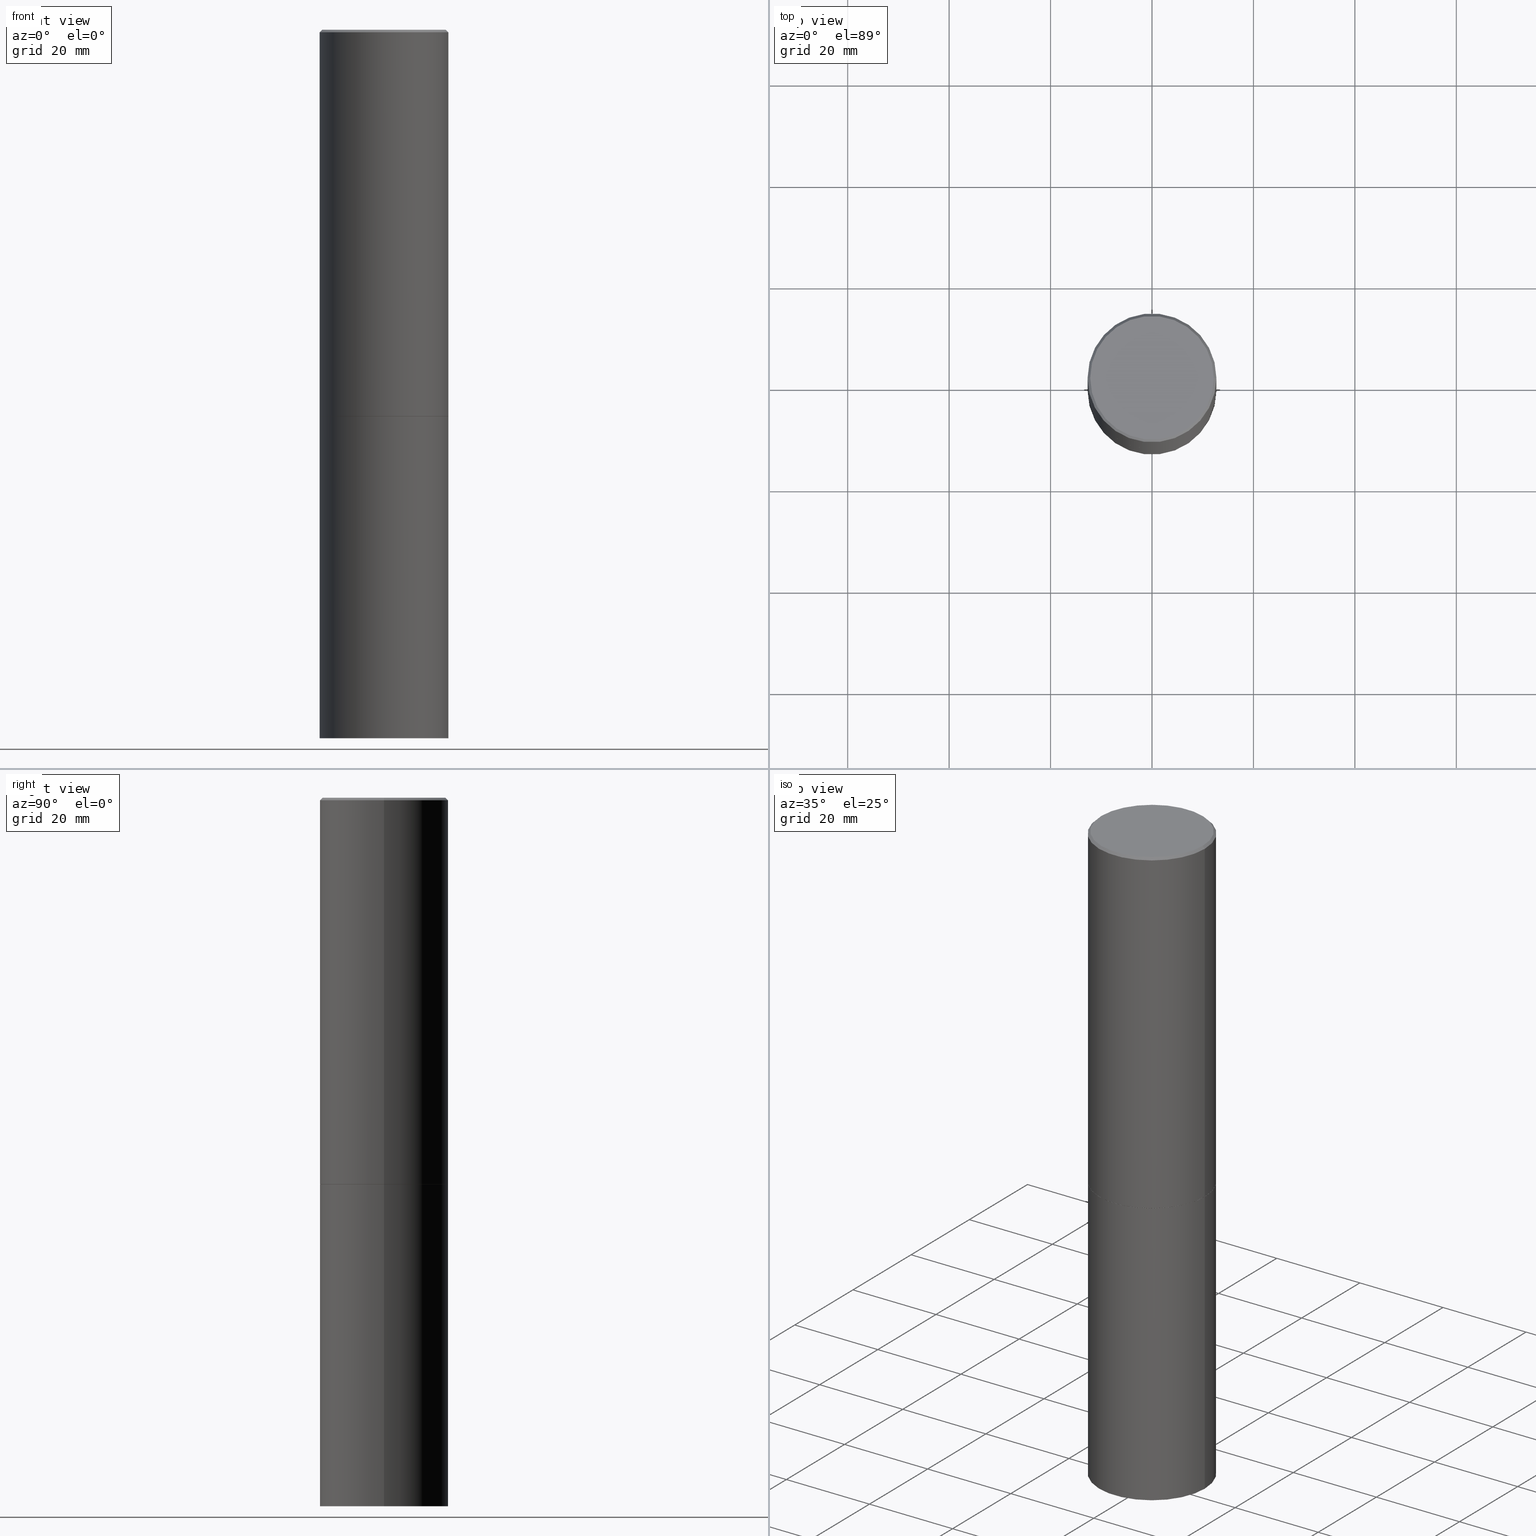
[diagram: canonical four-view strip — front | top / right | iso, engineering-drawing reading convention]
A machine part, canonical four-view strip (front | top / right | iso — engineering-drawing reading convention). The complete STEP part file that produces these views, byte-faithful:
ISO-10303-21;
HEADER;
FILE_DESCRIPTION (( 'STEP AP203' ),
    '1' );
FILE_NAME ('77292.STEP',
    '2024-02-29T18:11:38',
    ( '' ),
    ( '' ),
    'SwSTEP 2.0',
    'SolidWorks 2023',
    '' );
FILE_SCHEMA (( 'CONFIG_CONTROL_DESIGN' ));
ENDSEC;

DATA;
#1 = DIRECTION ( 'NONE',  ( 1.000000000000000000, -6.982962677686267499E-15, 4.876036955247132767E-29 ) ) ;
#2 = CIRCLE ( 'NONE', #220, 0.5000000000000000000 ) ;
#3 = APPROVAL_STATUS ( 'not_yet_approved' ) ;
#4 = APPROVAL_DATE_TIME ( #258, #55 ) ;
#5 = DATE_AND_TIME ( #80, #133 ) ;
#6 = CARTESIAN_POINT ( 'NONE',  ( 0.000000000000000000, 0.000000000000000000, 0.000000000000000000 ) ) ;
#7 = APPROVAL_PERSON_ORGANIZATION ( #83, #13, #366 ) ;
#8 = CARTESIAN_POINT ( 'NONE',  ( 7.336406418555408669E-29, -1.047444401652943478E-14, -2.999999999999999556 ) ) ;
#9 = DIRECTION ( 'NONE',  ( 1.000000000000000000, -6.982962677686267499E-15, 4.876176775795936353E-29 ) ) ;
#10 = CONICAL_SURFACE ( 'NONE', #49, 0.4989999999999999991, 0.7853981633978239785 ) ;
#11 = CARTESIAN_POINT ( 'NONE',  ( -0.4799999999999996492, 3.386736898677836830E-15, 1.280553747027767124E-17 ) ) ;
#12 = EDGE_LOOP ( 'NONE', ( #42, #360, #15, #45 ) ) ;
#13 = APPROVAL ( #3, 'UNSPECIFIED' ) ;
#14 = AXIS2_PLACEMENT_3D ( 'NONE', #197, #318, #262 ) ;
#15 = ORIENTED_EDGE ( 'NONE', *, *, #229, .F. ) ;
#16 = LINE ( 'NONE', #130, #125 ) ;
#17 = VERTEX_POINT ( 'NONE', #271 ) ;
#18 = CLOSED_SHELL ( 'NONE', ( #129, #194, #235, #364 ) ) ;
#19 = CC_DESIGN_APPROVAL ( #151, ( #300 ) ) ;
#20 = CARTESIAN_POINT ( 'NONE',  ( -0.4999999999999997224, 3.421651712066268085E-15, -0.02000000000000012879 ) ) ;
#21 = EDGE_CURVE ( 'NONE', #273, #358, #183, .T. ) ;
#22 = CARTESIAN_POINT ( 'NONE',  ( 7.336406418555408669E-29, -1.047444401652943478E-14, -2.999999999999999556 ) ) ;
#23 = ORIENTED_EDGE ( 'NONE', *, *, #61, .T. ) ;
#24 = EDGE_CURVE ( 'NONE', #159, #62, #134, .T. ) ;
#25 = DIRECTION ( 'NONE',  ( 1.000000000000000000, -6.982962677686262766E-15, 0.000000000000000000 ) ) ;
#26 = PERSON_AND_ORGANIZATION_ROLE ( 'design_supplier' ) ;
#27 = APPLICATION_PROTOCOL_DEFINITION ( 'international standard', 'config_control_design', 1994, #40 ) ;
#28 = PRODUCT_DEFINITION_SHAPE ( 'NONE', 'NONE',  #300 ) ;
#29 = FACE_OUTER_BOUND ( 'NONE', #110, .T. ) ;
#30 = CARTESIAN_POINT ( 'NONE',  ( -0.5000000000000000000, -1.717677402183226998E-15, -2.999000000000000554 ) ) ;
#31 = DIRECTION ( 'NONE',  ( 1.000000000000000000, 0.000000000000000000, 0.000000000000000000 ) ) ;
#32 = DIRECTION ( 'NONE',  ( -1.000000000000000000, 6.982962677686265922E-15, -4.876176775795935793E-29 ) ) ;
#33 = PERSON_AND_ORGANIZATION ( #267, #87 ) ;
#34 = CALENDAR_DATE ( 2024, 29, 2 ) ;
#35 = PRODUCT_RELATED_PRODUCT_CATEGORY ( 'detail', '', ( #138 ) ) ;
#36 = VERTEX_POINT ( 'NONE', #47 ) ;
#37 = EDGE_CURVE ( 'NONE', #245, #299, #16, .T. ) ;
#38 = CARTESIAN_POINT ( 'NONE',  ( 1.345007843401824904E-28, -1.920314736363729972E-14, -5.500000000000000000 ) ) ;
#39 = CARTESIAN_POINT ( 'NONE',  ( -0.4989999999999999991, -6.928835765086534855E-15, -2.999999999999999556 ) ) ;
#40 = APPLICATION_CONTEXT ( 'configuration controlled 3d designs of mechanical parts and assemblies' ) ;
#41 = ORIENTED_EDGE ( 'NONE', *, *, #322, .T. ) ;
#42 = ORIENTED_EDGE ( 'NONE', *, *, #259, .T. ) ;
#43 = DIRECTION ( 'NONE',  ( -2.445468806185136877E-29, 3.491481338843145188E-15, 1.000000000000000000 ) ) ;
#44 = CONICAL_SURFACE ( 'NONE', #71, 0.4999999999999997224, 0.7853981633974463916 ) ;
#45 = ORIENTED_EDGE ( 'NONE', *, *, #322, .F. ) ;
#46 = DIRECTION ( 'NONE',  ( 2.438088387897960049E-29, -3.491481338843145188E-15, -1.000000000000000000 ) ) ;
#47 = CARTESIAN_POINT ( 'NONE',  ( 0.5000000000000000000, -1.396592535537256813E-14, -2.999999999999999556 ) ) ;
#48 = CARTESIAN_POINT ( 'NONE',  ( 0.4989999999999999991, -1.395894239269488369E-14, -2.999999999999999556 ) ) ;
#49 = AXIS2_PLACEMENT_3D ( 'NONE', #315, #279, #248 ) ;
#50 = FACE_OUTER_BOUND ( 'NONE', #307, .T. ) ;
#51 = VERTEX_POINT ( 'NONE', #238 ) ;
#52 = DIRECTION ( 'NONE',  ( 1.000000000000000000, -6.982962677686266711E-15, 4.876176775795935793E-29 ) ) ;
#53 = EDGE_CURVE ( 'NONE', #338, #361, #335, .T. ) ;
#54 = DATE_TIME_ROLE ( 'classification_date' ) ;
#55 = APPROVAL ( #314, 'UNSPECIFIED' ) ;
#56 = DIRECTION ( 'NONE',  ( 2.438088387897960049E-29, -3.491481338843145188E-15, -1.000000000000000000 ) ) ;
#57 = AXIS2_PLACEMENT_3D ( 'NONE', #363, #107, #76 ) ;
#58 = CARTESIAN_POINT ( 'NONE',  ( 0.000000000000000000, 0.000000000000000000, 0.000000000000000000 ) ) ;
#59 = CYLINDRICAL_SURFACE ( 'NONE', #14, 0.5000000000000000000 ) ;
#60 = APPROVAL_ROLE ( '' ) ;
#61 = EDGE_CURVE ( 'NONE', #159, #51, #356, .T. ) ;
#62 = VERTEX_POINT ( 'NONE', #142 ) ;
#63 = PLANE ( 'NONE',  #126 ) ;
#64 = AXIS2_PLACEMENT_3D ( 'NONE', #6, #292, #118 ) ;
#65 = EDGE_CURVE ( 'NONE', #338, #17, #103, .T. ) ;
#66 = CIRCLE ( 'NONE', #290, 0.4799999999999996492 ) ;
#67 = PRODUCT_DEFINITION_FORMATION_WITH_SPECIFIED_SOURCE ( 'ANY', '', #138, .NOT_KNOWN. ) ;
#68 = VERTEX_POINT ( 'NONE', #30 ) ;
#69 = FACE_OUTER_BOUND ( 'NONE', #70, .T. ) ;
#70 = EDGE_LOOP ( 'NONE', ( #278, #304, #309, #269 ) ) ;
#71 = AXIS2_PLACEMENT_3D ( 'NONE', #207, #120, #326 ) ;
#72 =( LENGTH_UNIT ( ) NAMED_UNIT ( * ) SI_UNIT ( $, .METRE. ) );
#73 = CC_DESIGN_PERSON_AND_ORGANIZATION_ASSIGNMENT ( #198, #343, ( #357 ) ) ;
#74 = ORIENTED_EDGE ( 'NONE', *, *, #65, .T. ) ;
#75 = DIRECTION ( 'NONE',  ( 1.000000000000000000, -6.982962677686269077E-15, 0.000000000000000000 ) ) ;
#76 = DIRECTION ( 'NONE',  ( 1.000000000000000000, -6.982962677686266711E-15, 0.000000000000000000 ) ) ;
#77 = ORIENTED_EDGE ( 'NONE', *, *, #53, .T. ) ;
#78 = AXIS2_PLACEMENT_3D ( 'NONE', #208, #119, #173 ) ;
#79 = CARTESIAN_POINT ( 'NONE',  ( 7.336406418555408669E-29, -1.047444401652943478E-14, -2.999999999999999556 ) ) ;
#80 = CALENDAR_DATE ( 2024, 29, 2 ) ;
#81 = ORIENTED_EDGE ( 'NONE', *, *, #259, .F. ) ;
#82 = APPROVAL_DATE_TIME ( #202, #13 ) ;
#83 = PERSON_AND_ORGANIZATION ( #267, #87 ) ;
#84 = MANIFOLD_SOLID_BREP ( 'Body-Move/Copy2[1]', #18 ) ;
#85 = AXIS2_PLACEMENT_3D ( 'NONE', #113, #257, #218 ) ;
#86 = CARTESIAN_POINT ( 'NONE',  ( 3.491481338843267462E-15, 0.4999999999999807931, -5.500000000000001776 ) ) ;
#87 = ORGANIZATION ( 'UNSPECIFIED', 'UNSPECIFIED', '' ) ;
#88 = DIRECTION ( 'NONE',  ( 0.000000000000000000, 0.000000000000000000, 1.000000000000000000 ) ) ;
#89 = EDGE_CURVE ( 'NONE', #361, #68, #148, .T. ) ;
#90 = SECURITY_CLASSIFICATION_LEVEL ( 'unclassified' ) ;
#91 = CYLINDRICAL_SURFACE ( 'NONE', #178, 0.4999999999999998335 ) ;
#92 = FACE_OUTER_BOUND ( 'NONE', #181, .T. ) ;
#93 = DIRECTION ( 'NONE',  ( -1.000000000000000000, 6.982962677686266711E-15, 0.000000000000000000 ) ) ;
#94 = AXIS2_PLACEMENT_3D ( 'NONE', #86, #56, #32 ) ;
#95 = CC_DESIGN_APPROVAL ( #13, ( #357 ) ) ;
#96 = PLANE ( 'NONE',  #78 ) ;
#97 = APPLICATION_CONTEXT ( 'configuration controlled 3d designs of mechanical parts and assemblies' ) ;
#98 = ORIENTED_EDGE ( 'NONE', *, *, #293, .F. ) ;
#99 = CC_DESIGN_PERSON_AND_ORGANIZATION_ASSIGNMENT ( #250, #341, ( #67 ) ) ;
#100 = EDGE_LOOP ( 'NONE', ( #74, #158, #295, #150 ) ) ;
#101 = EDGE_CURVE ( 'NONE', #245, #273, #66, .T. ) ;
#102 = DIRECTION ( 'NONE',  ( 0.7071067811865461294, -7.319954787623251312E-15, -0.7071067811865489050 ) ) ;
#103 = CIRCLE ( 'NONE', #199, 0.4989999999999999991 ) ;
#104 = VECTOR ( 'NONE', #301, 39.37007874015748143 ) ;
#105 = AXIS2_PLACEMENT_3D ( 'NONE', #22, #227, #234 ) ;
#106 = ORIENTED_EDGE ( 'NONE', *, *, #127, .T. ) ;
#107 = DIRECTION ( 'NONE',  ( -2.445468806185136597E-29, 3.491481338843145583E-15, 1.000000000000000000 ) ) ;
#108 = ORIENTED_EDGE ( 'NONE', *, *, #21, .F. ) ;
#109 = DIRECTION ( 'NONE',  ( -2.445468806185136597E-29, 3.491481338843145583E-15, 1.000000000000000000 ) ) ;
#110 = EDGE_LOOP ( 'NONE', ( #98, #136, #77, #195 ) ) ;
#111 = APPROVAL_STATUS ( 'not_yet_approved' ) ;
#112 = AXIS2_PLACEMENT_3D ( 'NONE', #243, #109, #52 ) ;
#113 = CARTESIAN_POINT ( 'NONE',  ( 7.333960949749226429E-29, -1.047095253519059492E-14, -2.999000000000000554 ) ) ;
#114 = DATE_AND_TIME ( #34, #164 ) ;
#115 = CARTESIAN_POINT ( 'NONE',  ( 4.890937612370304688E-31, -6.982962677686335982E-17, -0.02000000000000012879 ) ) ;
#116 = LOCAL_TIME ( 13, 11, 38.00000000000000000, #225 ) ;
#117 = FACE_OUTER_BOUND ( 'NONE', #337, .T. ) ;
#118 = DIRECTION ( 'NONE',  ( 1.000000000000000000, -6.982962677686267499E-15, 4.876176775795936353E-29 ) ) ;
#119 = DIRECTION ( 'NONE',  ( 2.438088387897960049E-29, -3.491481338843145188E-15, -1.000000000000000000 ) ) ;
#120 = DIRECTION ( 'NONE',  ( 2.445468806185136597E-29, -3.491481338843145583E-15, -1.000000000000000000 ) ) ;
#121 = CLOSED_SHELL ( 'NONE', ( #350, #270, #157, #244, #330, #176, #247, #333 ) ) ;
#122 = AXIS2_PLACEMENT_3D ( 'NONE', #160, #336, #163 ) ;
#123 = LINE ( 'NONE', #284, #251 ) ;
#124 = EDGE_LOOP ( 'NONE', ( #215, #213 ) ) ;
#125 = VECTOR ( 'NONE', #102, 39.37007874015748143 ) ;
#126 = AXIS2_PLACEMENT_3D ( 'NONE', #8, #297, #230 ) ;
#127 = EDGE_CURVE ( 'NONE', #68, #358, #320, .T. ) ;
#128 = ORIENTED_EDGE ( 'NONE', *, *, #233, .F. ) ;
#129 = ADVANCED_FACE ( 'NONE', ( #342 ), #59, .T. ) ;
#130 = CARTESIAN_POINT ( 'NONE',  ( 0.4999999999999997224, -3.500078625662627502E-15, -0.02000000000000012879 ) ) ;
#131 = ORIENTED_EDGE ( 'NONE', *, *, #272, .F. ) ;
#132 = FACE_OUTER_BOUND ( 'NONE', #100, .T. ) ;
#133 = LOCAL_TIME ( 13, 11, 38.00000000000000000, #255 ) ;
#134 = LINE ( 'NONE', #242, #362 ) ;
#135 = CYLINDRICAL_SURFACE ( 'NONE', #112, 0.5000000000000000000 ) ;
#136 = ORIENTED_EDGE ( 'NONE', *, *, #233, .T. ) ;
#137 = FACE_OUTER_BOUND ( 'NONE', #204, .T. ) ;
#138 = PRODUCT ( '77292', '77292', '', ( #280 ) ) ;
#139 = COORDINATED_UNIVERSAL_TIME_OFFSET ( 5, 0, .BEHIND. ) ;
#140 = DIRECTION ( 'NONE',  ( 1.000000000000000000, -6.982962677686266711E-15, 0.000000000000000000 ) ) ;
#141 = VECTOR ( 'NONE', #323, 39.37007874015748854 ) ;
#142 = CARTESIAN_POINT ( 'NONE',  ( -0.5000000000000000000, -1.128608201128286632E-14, -2.999999999999999556 ) ) ;
#143 = COORDINATED_UNIVERSAL_TIME_OFFSET ( 5, 0, .BEHIND. ) ;
#144 = DIRECTION ( 'NONE',  ( -2.445468806185136597E-29, 3.491481338843145583E-15, 1.000000000000000000 ) ) ;
#145 = CC_DESIGN_DATE_AND_TIME_ASSIGNMENT ( #114, #54, ( #357 ) ) ;
#146 = PERSON_AND_ORGANIZATION ( #267, #87 ) ;
#147 = APPROVAL_ROLE ( '' ) ;
#148 = CIRCLE ( 'NONE', #85, 0.5000000000000000000 ) ;
#149 = CONICAL_SURFACE ( 'NONE', #282, 0.4999999999999997224, 0.7853981633974463916 ) ;
#150 = ORIENTED_EDGE ( 'NONE', *, *, #53, .F. ) ;
#151 = APPROVAL ( #111, 'UNSPECIFIED' ) ;
#152 = CARTESIAN_POINT ( 'NONE',  ( 0.000000000000000000, 0.000000000000000000, 0.000000000000000000 ) ) ;
#153 = UNCERTAINTY_MEASURE_WITH_UNIT (LENGTH_MEASURE( 1.000000000000000082E-05 ), #302, 'distance_accuracy_value', 'NONE');
#154 = FACE_OUTER_BOUND ( 'NONE', #354, .T. ) ;
#155 =( GEOMETRIC_REPRESENTATION_CONTEXT ( 3 ) GLOBAL_UNCERTAINTY_ASSIGNED_CONTEXT ( ( #153 ) ) GLOBAL_UNIT_ASSIGNED_CONTEXT ( ( #302, #311, #167 ) ) REPRESENTATION_CONTEXT ( 'NONE', 'WORKASPACE' ) );
#156 = AXIS2_PLACEMENT_3D ( 'NONE', #241, #216, #75 ) ;
#157 = ADVANCED_FACE ( 'NONE', ( #92 ), #44, .T. ) ;
#158 = ORIENTED_EDGE ( 'NONE', *, *, #293, .T. ) ;
#159 = VERTEX_POINT ( 'NONE', #232 ) ;
#160 = CARTESIAN_POINT ( 'NONE',  ( -3.131554243005659264E-46, 4.471029511141341874E-32, 1.280553747030123384E-17 ) ) ;
#161 = CARTESIAN_POINT ( 'NONE',  ( 0.4989999999999999991, -1.395894239269488369E-14, -2.999999999999999556 ) ) ;
#162 = ORIENTED_EDGE ( 'NONE', *, *, #37, .T. ) ;
#163 = DIRECTION ( 'NONE',  ( 1.000000000000000000, -6.982962677686267499E-15, 4.876036955247132767E-29 ) ) ;
#164 = LOCAL_TIME ( 13, 11, 38.00000000000000000, #174 ) ;
#165 = DIRECTION ( 'NONE',  ( -2.445468806185136597E-29, 3.491481338843145583E-15, 1.000000000000000000 ) ) ;
#166 = EDGE_LOOP ( 'NONE', ( #237, #128 ) ) ;
#167 =( NAMED_UNIT ( * ) SI_UNIT ( $, .STERADIAN. ) SOLID_ANGLE_UNIT ( ) );
#168 = EDGE_CURVE ( 'NONE', #68, #361, #2, .T. ) ;
#169 = PERSON_AND_ORGANIZATION_ROLE ( 'design_owner' ) ;
#170 = DIRECTION ( 'NONE',  ( -2.445468806185136597E-29, 3.491481338843145583E-15, 1.000000000000000000 ) ) ;
#171 = EDGE_CURVE ( 'NONE', #361, #299, #123, .T. ) ;
#172 = PLANE ( 'NONE',  #94 ) ;
#173 = DIRECTION ( 'NONE',  ( -1.000000000000000000, 6.982962677686265922E-15, -4.876176775795935793E-29 ) ) ;
#174 = COORDINATED_UNIVERSAL_TIME_OFFSET ( 5, 0, .BEHIND. ) ;
#175 = ORIENTED_EDGE ( 'NONE', *, *, #344, .F. ) ;
#176 = ADVANCED_FACE ( 'NONE', ( #29 ), #10, .T. ) ;
#177 = LINE ( 'NONE', #287, #352 ) ;
#178 = AXIS2_PLACEMENT_3D ( 'NONE', #152, #205, #9 ) ;
#179 = DIRECTION ( 'NONE',  ( 2.445468806185136597E-29, -3.491481338843145583E-15, -1.000000000000000000 ) ) ;
#180 = CARTESIAN_POINT ( 'NONE',  ( 7.333960949749226429E-29, -1.047095253519059492E-14, -2.999000000000000554 ) ) ;
#181 = EDGE_LOOP ( 'NONE', ( #317, #162, #189, #108 ) ) ;
#182 = CC_DESIGN_SECURITY_CLASSIFICATION ( #357, ( #67 ) ) ;
#183 = LINE ( 'NONE', #20, #104 ) ;
#184 = CC_DESIGN_PERSON_AND_ORGANIZATION_ASSIGNMENT ( #316, #348, ( #300 ) ) ;
#185 = CYLINDRICAL_SURFACE ( 'NONE', #64, 0.4999999999999998335 ) ;
#186 = ORIENTED_EDGE ( 'NONE', *, *, #211, .T. ) ;
#187 = AXIS2_PLACEMENT_3D ( 'NONE', #38, #321, #327 ) ;
#188 = ORIENTED_EDGE ( 'NONE', *, *, #61, .F. ) ;
#189 = ORIENTED_EDGE ( 'NONE', *, *, #240, .T. ) ;
#190 = CARTESIAN_POINT ( 'NONE',  ( -0.4999999999999997224, 3.421651712066268085E-15, -0.02000000000000012879 ) ) ;
#191 = CARTESIAN_POINT ( 'NONE',  ( 7.336406418555408669E-29, -1.047444401652943478E-14, -2.999999999999999556 ) ) ;
#192 = ORIENTED_EDGE ( 'NONE', *, *, #37, .F. ) ;
#193 = LOCAL_TIME ( 13, 11, 38.00000000000000000, #139 ) ;
#194 = ADVANCED_FACE ( 'NONE', ( #50 ), #172, .T. ) ;
#195 = ORIENTED_EDGE ( 'NONE', *, *, #168, .F. ) ;
#196 = SHAPE_DEFINITION_REPRESENTATION ( #28, #254 ) ;
#197 = CARTESIAN_POINT ( 'NONE',  ( 0.000000000000000000, 0.000000000000000000, 0.000000000000000000 ) ) ;
#198 = PERSON_AND_ORGANIZATION ( #267, #87 ) ;
#199 = AXIS2_PLACEMENT_3D ( 'NONE', #79, #200, #283 ) ;
#200 = DIRECTION ( 'NONE',  ( -2.445468806185136597E-29, 3.491481338843145583E-15, 1.000000000000000000 ) ) ;
#201 = DIRECTION ( 'NONE',  ( 0.7071067811868130271, -2.468850131085038979E-15, 0.7071067811862817853 ) ) ;
#202 = DATE_AND_TIME ( #319, #193 ) ;
#203 = LINE ( 'NONE', #39, #141 ) ;
#204 = EDGE_LOOP ( 'NONE', ( #332, #365 ) ) ;
#205 = DIRECTION ( 'NONE',  ( -2.445468806185136597E-29, 3.491481338843145583E-15, 1.000000000000000000 ) ) ;
#206 = CIRCLE ( 'NONE', #187, 0.5000000000000000000 ) ;
#207 = CARTESIAN_POINT ( 'NONE',  ( 4.890937612370304688E-31, -6.982962677686335982E-17, -0.02000000000000012879 ) ) ;
#208 = CARTESIAN_POINT ( 'NONE',  ( 3.491481338843206325E-15, 0.4999999999999895639, -3.000000000000001332 ) ) ;
#209 = CC_DESIGN_PERSON_AND_ORGANIZATION_ASSIGNMENT ( #33, #169, ( #138 ) ) ;
#210 = CARTESIAN_POINT ( 'NONE',  ( 0.4999999999999997224, -3.500078625662627502E-15, -0.02000000000000012879 ) ) ;
#211 = EDGE_CURVE ( 'NONE', #358, #299, #310, .T. ) ;
#212 = ORIENTED_EDGE ( 'NONE', *, *, #89, .T. ) ;
#213 = ORIENTED_EDGE ( 'NONE', *, *, #272, .T. ) ;
#214 = CIRCLE ( 'NONE', #122, 0.4799999999999996492 ) ;
#215 = ORIENTED_EDGE ( 'NONE', *, *, #229, .T. ) ;
#216 = DIRECTION ( 'NONE',  ( -2.445468806185136597E-29, 3.491481338843145583E-15, 1.000000000000000000 ) ) ;
#217 = ORIENTED_EDGE ( 'NONE', *, *, #240, .F. ) ;
#218 = DIRECTION ( 'NONE',  ( 1.000000000000000000, -6.982962677686266711E-15, 0.000000000000000000 ) ) ;
#219 = DATE_AND_TIME ( #223, #224 ) ;
#220 = AXIS2_PLACEMENT_3D ( 'NONE', #180, #170, #140 ) ;
#221 = DATE_TIME_ROLE ( 'creation_date' ) ;
#222 = DIRECTION ( 'NONE',  ( -2.445468806185136877E-29, 3.491481338843145188E-15, 1.000000000000000000 ) ) ;
#223 = CALENDAR_DATE ( 2024, 29, 2 ) ;
#224 = LOCAL_TIME ( 13, 11, 38.00000000000000000, #143 ) ;
#225 = COORDINATED_UNIVERSAL_TIME_OFFSET ( 5, 0, .BEHIND. ) ;
#226 = CC_DESIGN_DATE_AND_TIME_ASSIGNMENT ( #219, #221, ( #300 ) ) ;
#227 = DIRECTION ( 'NONE',  ( -2.445468806185136597E-29, 3.491481338843145583E-15, 1.000000000000000000 ) ) ;
#228 = DIRECTION ( 'NONE',  ( -2.445468806185136877E-29, 3.491481338843145188E-15, 1.000000000000000000 ) ) ;
#229 = EDGE_CURVE ( 'NONE', #36, #62, #266, .T. ) ;
#230 = DIRECTION ( 'NONE',  ( 1.000000000000000000, -6.982962677686265922E-15, 4.876176775795935793E-29 ) ) ;
#231 = VECTOR ( 'NONE', #222, 39.37007874015748143 ) ;
#232 = CARTESIAN_POINT ( 'NONE',  ( -0.5000000000000000000, -1.128608201128286632E-14, -5.500000000000000000 ) ) ;
#233 = EDGE_CURVE ( 'NONE', #17, #338, #236, .T. ) ;
#234 = DIRECTION ( 'NONE',  ( 1.000000000000000000, -6.982962677686269077E-15, 0.000000000000000000 ) ) ;
#235 = ADVANCED_FACE ( 'NONE', ( #294 ), #96, .F. ) ;
#236 = CIRCLE ( 'NONE', #105, 0.4989999999999999991 ) ;
#237 = ORIENTED_EDGE ( 'NONE', *, *, #65, .F. ) ;
#238 = CARTESIAN_POINT ( 'NONE',  ( 0.5000000000000000000, -2.269462870248043307E-14, -5.500000000000000000 ) ) ;
#239 = AXIS2_PLACEMENT_3D ( 'NONE', #305, #46, #312 ) ;
#240 = EDGE_CURVE ( 'NONE', #299, #358, #345, .T. ) ;
#241 = CARTESIAN_POINT ( 'NONE',  ( 7.336406418555408669E-29, -1.047444401652943478E-14, -2.999999999999999556 ) ) ;
#242 = CARTESIAN_POINT ( 'NONE',  ( -0.5000000000000000000, 3.552713678800500929E-15, -2.459467545127452891E-29 ) ) ;
#243 = CARTESIAN_POINT ( 'NONE',  ( 0.000000000000000000, 0.000000000000000000, 0.000000000000000000 ) ) ;
#244 = ADVANCED_FACE ( 'NONE', ( #349 ), #149, .T. ) ;
#245 = VERTEX_POINT ( 'NONE', #331 ) ;
#246 = CARTESIAN_POINT ( 'NONE',  ( 0.5000000000000000000, -1.396243387403372828E-14, -2.999000000000000554 ) ) ;
#247 = ADVANCED_FACE ( 'NONE', ( #346 ), #63, .F. ) ;
#248 = DIRECTION ( 'NONE',  ( 1.000000000000000000, -6.982962677686269077E-15, 0.000000000000000000 ) ) ;
#249 = DIRECTION ( 'NONE',  ( -2.445468806185136597E-29, 3.491481338843145583E-15, 1.000000000000000000 ) ) ;
#250 = PERSON_AND_ORGANIZATION ( #267, #87 ) ;
#251 = VECTOR ( 'NONE', #228, 39.37007874015748143 ) ;
#252 = CARTESIAN_POINT ( 'NONE',  ( -0.4999999999999998335, 3.552713678800499746E-15, -2.459467545127452330E-29 ) ) ;
#253 = CALENDAR_DATE ( 2024, 29, 2 ) ;
#254 = ADVANCED_BREP_SHAPE_REPRESENTATION ( '77292', ( #84, #325, #340 ), #155 ) ;
#255 = COORDINATED_UNIVERSAL_TIME_OFFSET ( 5, 0, .BEHIND. ) ;
#256 = CARTESIAN_POINT ( 'NONE',  ( 7.336406418555408669E-29, -1.047444401652943478E-14, -2.999999999999999556 ) ) ;
#257 = DIRECTION ( 'NONE',  ( -2.445468806185136597E-29, 3.491481338843145583E-15, 1.000000000000000000 ) ) ;
#258 = DATE_AND_TIME ( #253, #116 ) ;
#259 = EDGE_CURVE ( 'NONE', #51, #159, #206, .T. ) ;
#260 = AXIS2_PLACEMENT_3D ( 'NONE', #191, #165, #277 ) ;
#261 = CARTESIAN_POINT ( 'NONE',  ( 4.890937612370304688E-31, -6.982962677686335982E-17, -0.02000000000000012879 ) ) ;
#262 = DIRECTION ( 'NONE',  ( 1.000000000000000000, -6.982962677686266711E-15, 4.876176775795935793E-29 ) ) ;
#263 = DIRECTION ( 'NONE',  ( -2.445468806185136597E-29, 3.491481338843145583E-15, 1.000000000000000000 ) ) ;
#264 = VECTOR ( 'NONE', #201, 39.37007874015748854 ) ;
#265 = DIRECTION ( 'NONE',  ( 1.000000000000000000, -6.982962677686266711E-15, 0.000000000000000000 ) ) ;
#266 = CIRCLE ( 'NONE', #260, 0.5000000000000000000 ) ;
#267 = PERSON ( 'UNSPECIFIED', 'UNSPECIFIED', 'UNSPECIFIED', ('UNSPECIFIED'), ('UNSPECIFIED'), ('UNSPECIFIED') ) ;
#268 = CONICAL_SURFACE ( 'NONE', #156, 0.4989999999999999991, 0.7853981633978239785 ) ;
#269 = ORIENTED_EDGE ( 'NONE', *, *, #211, .F. ) ;
#270 = ADVANCED_FACE ( 'NONE', ( #154 ), #91, .T. ) ;
#271 = CARTESIAN_POINT ( 'NONE',  ( -0.4989999999999999991, -6.923537310738314819E-15, -2.999999999999999556 ) ) ;
#272 = EDGE_CURVE ( 'NONE', #62, #36, #291, .T. ) ;
#273 = VERTEX_POINT ( 'NONE', #11 ) ;
#274 = ORIENTED_EDGE ( 'NONE', *, *, #171, .F. ) ;
#275 = APPROVAL_PERSON_ORGANIZATION ( #281, #55, #147 ) ;
#276 = DESIGN_CONTEXT ( 'detailed design', #97, 'design' ) ;
#277 = DIRECTION ( 'NONE',  ( 1.000000000000000000, -6.982962677686266711E-15, 0.000000000000000000 ) ) ;
#278 = ORIENTED_EDGE ( 'NONE', *, *, #127, .F. ) ;
#279 = DIRECTION ( 'NONE',  ( -2.445468806185136597E-29, 3.491481338843145583E-15, 1.000000000000000000 ) ) ;
#280 = MECHANICAL_CONTEXT ( 'NONE', #40, 'mechanical' ) ;
#281 = PERSON_AND_ORGANIZATION ( #267, #87 ) ;
#282 = AXIS2_PLACEMENT_3D ( 'NONE', #115, #179, #93 ) ;
#283 = DIRECTION ( 'NONE',  ( 1.000000000000000000, -6.982962677686269077E-15, 0.000000000000000000 ) ) ;
#284 = CARTESIAN_POINT ( 'NONE',  ( 0.4999999999999998335, -3.491481338843132566E-15, 2.438088387897967336E-29 ) ) ;
#285 = APPLICATION_PROTOCOL_DEFINITION ( 'international standard', 'config_control_design', 1994, #97 ) ;
#286 = APPROVAL_DATE_TIME ( #5, #151 ) ;
#287 = CARTESIAN_POINT ( 'NONE',  ( 0.5000000000000000000, -3.491481338843133355E-15, 2.438088387897967896E-29 ) ) ;
#288 = PERSON_AND_ORGANIZATION ( #267, #87 ) ;
#289 = EDGE_LOOP ( 'NONE', ( #192, #175, #306, #186 ) ) ;
#290 = AXIS2_PLACEMENT_3D ( 'NONE', #313, #249, #1 ) ;
#291 = CIRCLE ( 'NONE', #303, 0.5000000000000000000 ) ;
#292 = DIRECTION ( 'NONE',  ( -2.445468806185136597E-29, 3.491481338843145583E-15, 1.000000000000000000 ) ) ;
#293 = EDGE_CURVE ( 'NONE', #17, #68, #203, .T. ) ;
#294 = FACE_OUTER_BOUND ( 'NONE', #124, .T. ) ;
#295 = ORIENTED_EDGE ( 'NONE', *, *, #89, .F. ) ;
#296 = DIMENSIONAL_EXPONENTS ( 1.000000000000000000, 0.000000000000000000, 0.000000000000000000, 0.000000000000000000, 0.000000000000000000, 0.000000000000000000, 0.000000000000000000 ) ;
#297 = DIRECTION ( 'NONE',  ( -2.438088387897960049E-29, 3.491481338843145188E-15, 1.000000000000000000 ) ) ;
#298 = APPROVAL_PERSON_ORGANIZATION ( #146, #151, #60 ) ;
#299 = VERTEX_POINT ( 'NONE', #210 ) ;
#300 = PRODUCT_DEFINITION ( 'UNKNOWN', '', #67, #276 ) ;
#301 = DIRECTION ( 'NONE',  ( -0.7071067811865461294, 2.468850131082242072E-15, -0.7071067811865489050 ) ) ;
#302 =( CONVERSION_BASED_UNIT ( 'INCH', #339 ) LENGTH_UNIT ( ) NAMED_UNIT ( #296 ) );
#303 = AXIS2_PLACEMENT_3D ( 'NONE', #256, #263, #265 ) ;
#304 = ORIENTED_EDGE ( 'NONE', *, *, #168, .T. ) ;
#305 = CARTESIAN_POINT ( 'NONE',  ( 3.351822085289405181E-15, 0.4799999999999996492, -1.669508273909558064E-15 ) ) ;
#306 = ORIENTED_EDGE ( 'NONE', *, *, #21, .T. ) ;
#307 = EDGE_LOOP ( 'NONE', ( #81, #188 ) ) ;
#308 = AXIS2_PLACEMENT_3D ( 'NONE', #347, #144, #25 ) ;
#309 = ORIENTED_EDGE ( 'NONE', *, *, #171, .T. ) ;
#310 = CIRCLE ( 'NONE', #57, 0.4999999999999997224 ) ;
#311 =( NAMED_UNIT ( * ) PLANE_ANGLE_UNIT ( ) SI_UNIT ( $, .RADIAN. ) );
#312 = DIRECTION ( 'NONE',  ( -1.000000000000000000, 6.982962677686265922E-15, -4.876176775795935793E-29 ) ) ;
#313 = CARTESIAN_POINT ( 'NONE',  ( -3.131554243005659264E-46, 4.471029511141341874E-32, 1.280553747030123384E-17 ) ) ;
#314 = APPROVAL_STATUS ( 'not_yet_approved' ) ;
#315 = CARTESIAN_POINT ( 'NONE',  ( 7.336406418555408669E-29, -1.047444401652943478E-14, -2.999999999999999556 ) ) ;
#316 = PERSON_AND_ORGANIZATION ( #267, #87 ) ;
#317 = ORIENTED_EDGE ( 'NONE', *, *, #101, .F. ) ;
#318 = DIRECTION ( 'NONE',  ( -2.445468806185136597E-29, 3.491481338843145583E-15, 1.000000000000000000 ) ) ;
#319 = CALENDAR_DATE ( 2024, 29, 2 ) ;
#320 = LINE ( 'NONE', #252, #231 ) ;
#321 = DIRECTION ( 'NONE',  ( -2.445468806185136597E-29, 3.491481338843145583E-15, 1.000000000000000000 ) ) ;
#322 = EDGE_CURVE ( 'NONE', #51, #36, #177, .T. ) ;
#323 = DIRECTION ( 'NONE',  ( -0.7071067811868130271, 7.493145998871311837E-15, 0.7071067811862817853 ) ) ;
#324 = AXIS2_PLACEMENT_3D ( 'NONE', #261, #355, #351 ) ;
#325 = MANIFOLD_SOLID_BREP ( 'Body-Move/Copy2[2]', #121 ) ;
#326 = DIRECTION ( 'NONE',  ( -1.000000000000000000, 6.982962677686266711E-15, 0.000000000000000000 ) ) ;
#327 = DIRECTION ( 'NONE',  ( 1.000000000000000000, -6.982962677686262766E-15, 0.000000000000000000 ) ) ;
#328 = CC_DESIGN_APPROVAL ( #55, ( #67 ) ) ;
#329 = ORIENTED_EDGE ( 'NONE', *, *, #24, .F. ) ;
#330 = ADVANCED_FACE ( 'NONE', ( #69 ), #185, .T. ) ;
#331 = CARTESIAN_POINT ( 'NONE',  ( 0.4799999999999996492, -3.396558832296480127E-15, 1.280553747032483033E-17 ) ) ;
#332 = ORIENTED_EDGE ( 'NONE', *, *, #344, .T. ) ;
#333 = ADVANCED_FACE ( 'NONE', ( #137 ), #334, .F. ) ;
#334 = PLANE ( 'NONE',  #239 ) ;
#335 = LINE ( 'NONE', #161, #264 ) ;
#336 = DIRECTION ( 'NONE',  ( -2.445468806185136597E-29, 3.491481338843145583E-15, 1.000000000000000000 ) ) ;
#337 = EDGE_LOOP ( 'NONE', ( #329, #23, #41, #131 ) ) ;
#338 = VERTEX_POINT ( 'NONE', #48 ) ;
#339 = LENGTH_MEASURE_WITH_UNIT ( LENGTH_MEASURE( 0.02539999999999999897 ), #72 );
#340 = AXIS2_PLACEMENT_3D ( 'NONE', #58, #88, #31 ) ;
#341 = PERSON_AND_ORGANIZATION_ROLE ( 'creator' ) ;
#342 = FACE_OUTER_BOUND ( 'NONE', #12, .T. ) ;
#343 = PERSON_AND_ORGANIZATION_ROLE ( 'classification_officer' ) ;
#344 = EDGE_CURVE ( 'NONE', #273, #245, #214, .T. ) ;
#345 = CIRCLE ( 'NONE', #324, 0.4999999999999997224 ) ;
#346 = FACE_OUTER_BOUND ( 'NONE', #166, .T. ) ;
#347 = CARTESIAN_POINT ( 'NONE',  ( 1.345007843401824904E-28, -1.920314736363729972E-14, -5.500000000000000000 ) ) ;
#348 = PERSON_AND_ORGANIZATION_ROLE ( 'creator' ) ;
#349 = FACE_OUTER_BOUND ( 'NONE', #289, .T. ) ;
#350 = ADVANCED_FACE ( 'NONE', ( #132 ), #268, .T. ) ;
#351 = DIRECTION ( 'NONE',  ( 1.000000000000000000, -6.982962677686266711E-15, 0.000000000000000000 ) ) ;
#352 = VECTOR ( 'NONE', #353, 39.37007874015748143 ) ;
#353 = DIRECTION ( 'NONE',  ( -2.445468806185136877E-29, 3.491481338843145188E-15, 1.000000000000000000 ) ) ;
#354 = EDGE_LOOP ( 'NONE', ( #212, #106, #217, #274 ) ) ;
#355 = DIRECTION ( 'NONE',  ( -2.445468806185136597E-29, 3.491481338843145583E-15, 1.000000000000000000 ) ) ;
#356 = CIRCLE ( 'NONE', #308, 0.5000000000000000000 ) ;
#357 = SECURITY_CLASSIFICATION ( '', '', #90 ) ;
#358 = VERTEX_POINT ( 'NONE', #190 ) ;
#359 = CC_DESIGN_PERSON_AND_ORGANIZATION_ASSIGNMENT ( #288, #26, ( #67 ) ) ;
#360 = ORIENTED_EDGE ( 'NONE', *, *, #24, .T. ) ;
#361 = VERTEX_POINT ( 'NONE', #246 ) ;
#362 = VECTOR ( 'NONE', #43, 39.37007874015748143 ) ;
#363 = CARTESIAN_POINT ( 'NONE',  ( 4.890937612370304688E-31, -6.982962677686335982E-17, -0.02000000000000012879 ) ) ;
#364 = ADVANCED_FACE ( 'NONE', ( #117 ), #135, .T. ) ;
#365 = ORIENTED_EDGE ( 'NONE', *, *, #101, .T. ) ;
#366 = APPROVAL_ROLE ( '' ) ;
ENDSEC;
END-ISO-10303-21;
